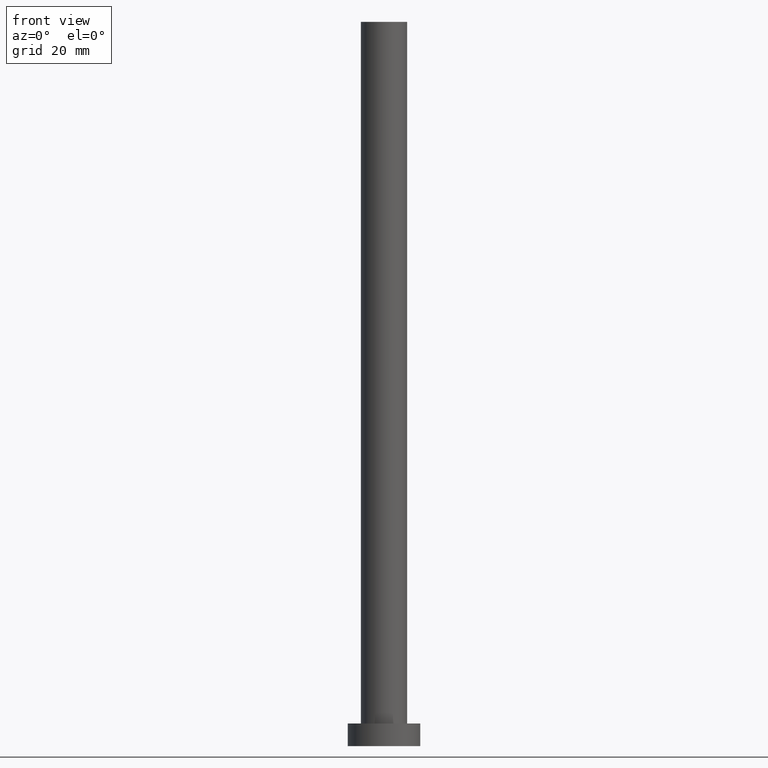
[diagram: clean part render]
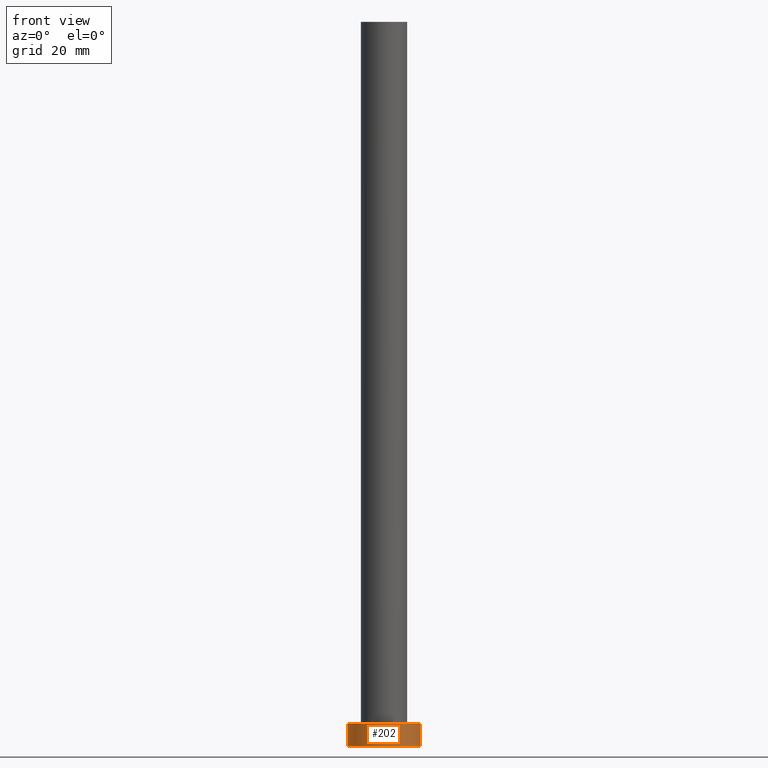
[diagram: same view with one face highlighted and labeled with its STEP entity id]
A machine part, front view. The second image highlights one B-rep face of the part: STEP entity #202.
In plain terms, the highlighted cylindrical surface (edge-blend (fillet) strip) has radius 8 mm, axis along (-0, -0, -1).
Its self-contained STEP definition (entity closure, byte-faithful):
#4 = DIRECTION ( 'NONE',  ( 1.000000000000000000, 0.000000000000000000, 0.000000000000000000 ) ) ;
#12 = DIRECTION ( 'NONE',  ( 1.000000000000000000, 0.000000000000000000, 0.000000000000000000 ) ) ;
#24 = CARTESIAN_POINT ( 'NONE',  ( 0.000000000000000000, 0.000000000000000000, 0.000000000000000000 ) ) ;
#27 = CARTESIAN_POINT ( 'NONE',  ( -8.000000000000000000, 0.000000000000000000, 0.000000000000000000 ) ) ;
#29 = AXIS2_PLACEMENT_3D ( 'NONE', #88, #164, #12 ) ;
#35 = VECTOR ( 'NONE', #237, 1000.000000000000000 ) ;
#37 = VERTEX_POINT ( 'NONE', #27 ) ;
#60 = ORIENTED_EDGE ( 'NONE', *, *, #210, .T. ) ;
#63 = AXIS2_PLACEMENT_3D ( 'NONE', #182, #69, #144 ) ;
#66 = CYLINDRICAL_SURFACE ( 'NONE', #63, 8.000000000000000000 ) ;
#69 = DIRECTION ( 'NONE',  ( -0.000000000000000000, -0.000000000000000000, -1.000000000000000000 ) ) ;
#71 = CIRCLE ( 'NONE', #147, 8.000000000000000000 ) ;
#88 = CARTESIAN_POINT ( 'NONE',  ( 0.000000000000000000, 0.000000000000000000, 5.000000000000000000 ) ) ;
#104 = DIRECTION ( 'NONE',  ( -0.000000000000000000, -0.000000000000000000, -1.000000000000000000 ) ) ;
#106 = DIRECTION ( 'NONE',  ( 0.000000000000000000, 0.000000000000000000, 1.000000000000000000 ) ) ;
#109 = EDGE_CURVE ( 'NONE', #159, #254, #130, .T. ) ;
#123 = LINE ( 'NONE', #149, #227 ) ;
#130 = LINE ( 'NONE', #239, #35 ) ;
#139 = ORIENTED_EDGE ( 'NONE', *, *, #168, .T. ) ;
#143 = CARTESIAN_POINT ( 'NONE',  ( 8.000000000000000000, 9.797174393178825657E-16, 5.000000000000000000 ) ) ;
#144 = DIRECTION ( 'NONE',  ( -1.000000000000000000, 0.000000000000000000, 0.000000000000000000 ) ) ;
#147 = AXIS2_PLACEMENT_3D ( 'NONE', #24, #106, #4 ) ;
#149 = CARTESIAN_POINT ( 'NONE',  ( -8.000000000000000000, 0.000000000000000000, 5.000000000000000000 ) ) ;
#154 = ORIENTED_EDGE ( 'NONE', *, *, #220, .F. ) ;
#159 = VERTEX_POINT ( 'NONE', #143 ) ;
#164 = DIRECTION ( 'NONE',  ( 0.000000000000000000, 0.000000000000000000, 1.000000000000000000 ) ) ;
#168 = EDGE_CURVE ( 'NONE', #230, #37, #123, .T. ) ;
#170 = CARTESIAN_POINT ( 'NONE',  ( -8.000000000000000000, 0.000000000000000000, 5.000000000000000000 ) ) ;
#182 = CARTESIAN_POINT ( 'NONE',  ( 0.000000000000000000, 0.000000000000000000, 5.000000000000000000 ) ) ;
#187 = CARTESIAN_POINT ( 'NONE',  ( 8.000000000000000000, 9.797174393178825657E-16, 0.000000000000000000 ) ) ;
#202 = ADVANCED_FACE ( 'NONE', ( #243 ), #66, .T. ) ;
#210 = EDGE_CURVE ( 'NONE', #37, #254, #71, .T. ) ;
#211 = CIRCLE ( 'NONE', #29, 8.000000000000000000 ) ;
#220 = EDGE_CURVE ( 'NONE', #230, #159, #211, .T. ) ;
#227 = VECTOR ( 'NONE', #104, 1000.000000000000000 ) ;
#230 = VERTEX_POINT ( 'NONE', #170 ) ;
#235 = ORIENTED_EDGE ( 'NONE', *, *, #109, .F. ) ;
#237 = DIRECTION ( 'NONE',  ( -0.000000000000000000, -0.000000000000000000, -1.000000000000000000 ) ) ;
#239 = CARTESIAN_POINT ( 'NONE',  ( 8.000000000000000000, 9.797174393178825657E-16, 5.000000000000000000 ) ) ;
#243 = FACE_OUTER_BOUND ( 'NONE', #251, .T. ) ;
#251 = EDGE_LOOP ( 'NONE', ( #235, #154, #139, #60 ) ) ;
#254 = VERTEX_POINT ( 'NONE', #187 ) ;